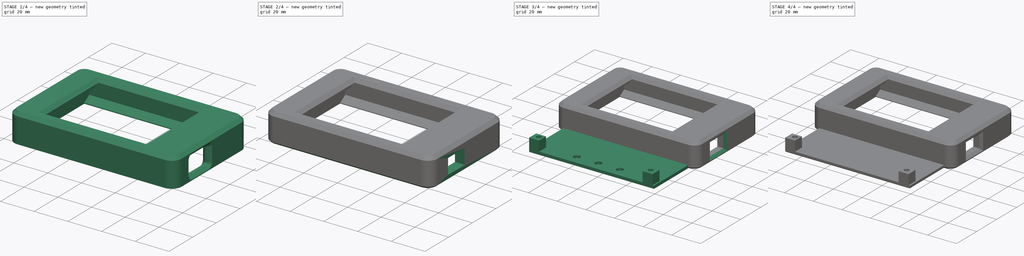
[diagram: build sequence overview — one tinted view per stage of 4, left to right]
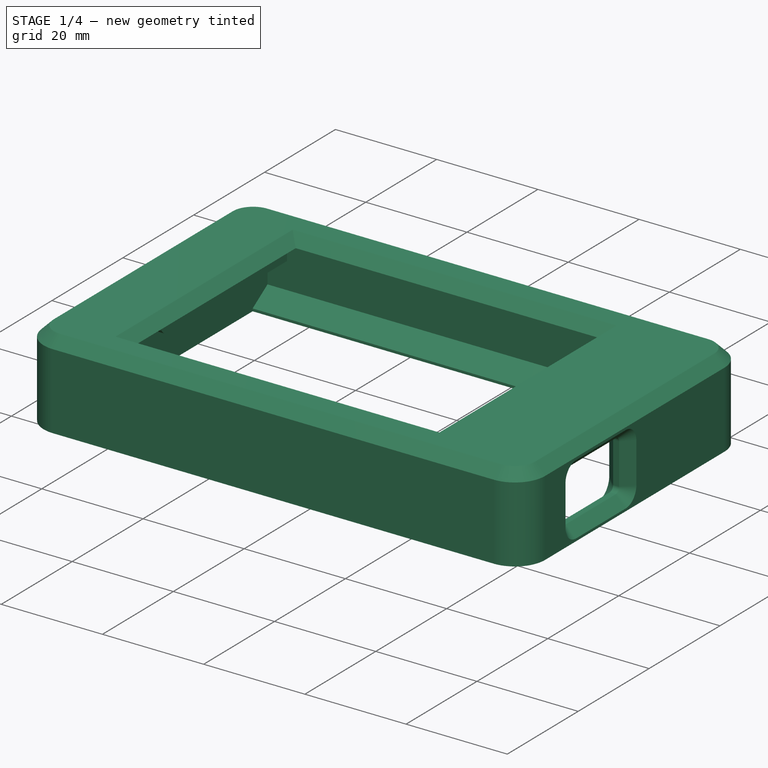
[diagram: stage 1 of 4 — iso view after this stage's code; geometry added in this stage tinted green]
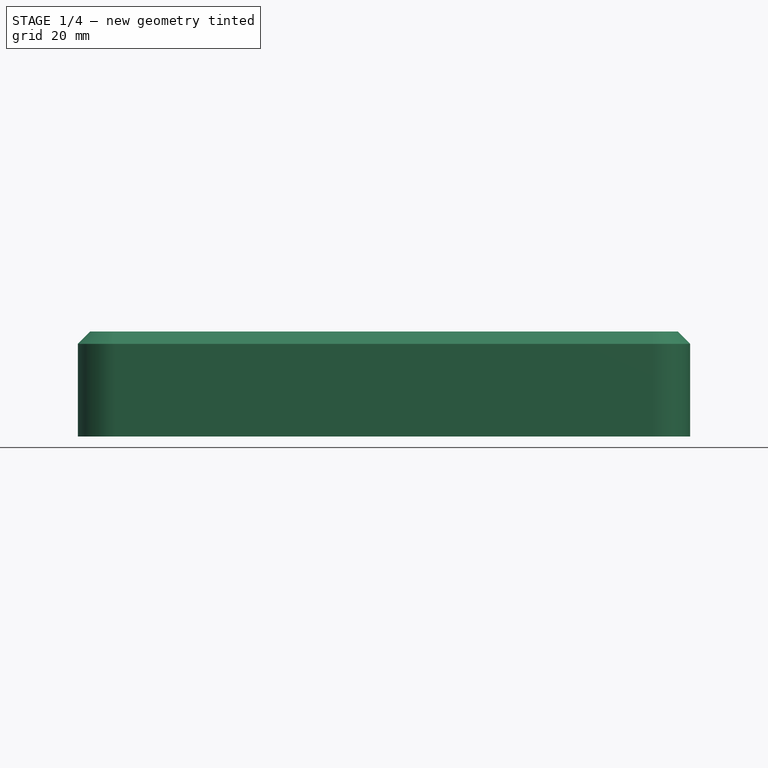
[diagram: stage 1 of 4 — front view after this stage's code; geometry added in this stage tinted green]
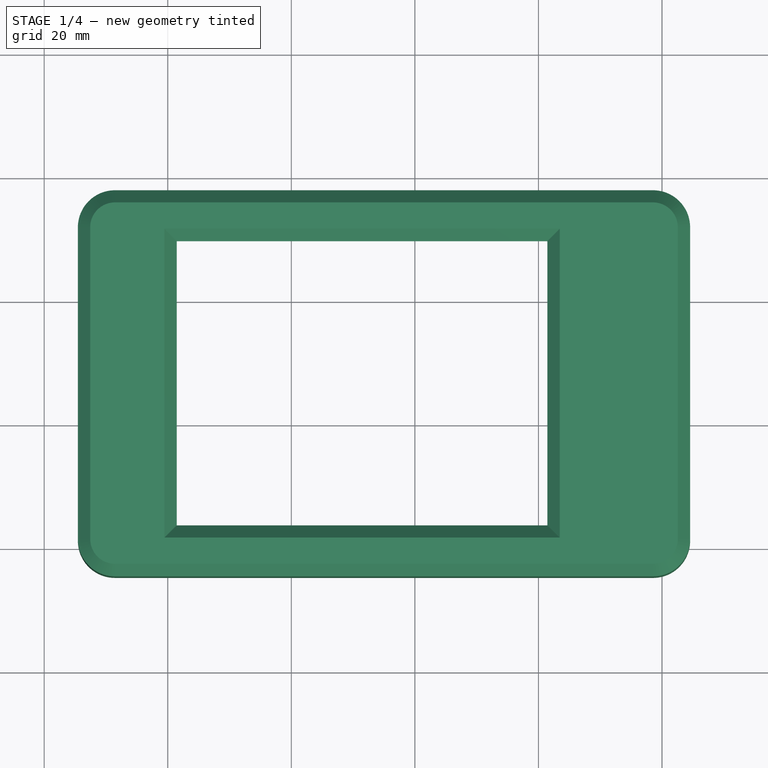
[diagram: stage 1 of 4 — top view after this stage's code; geometry added in this stage tinted green]
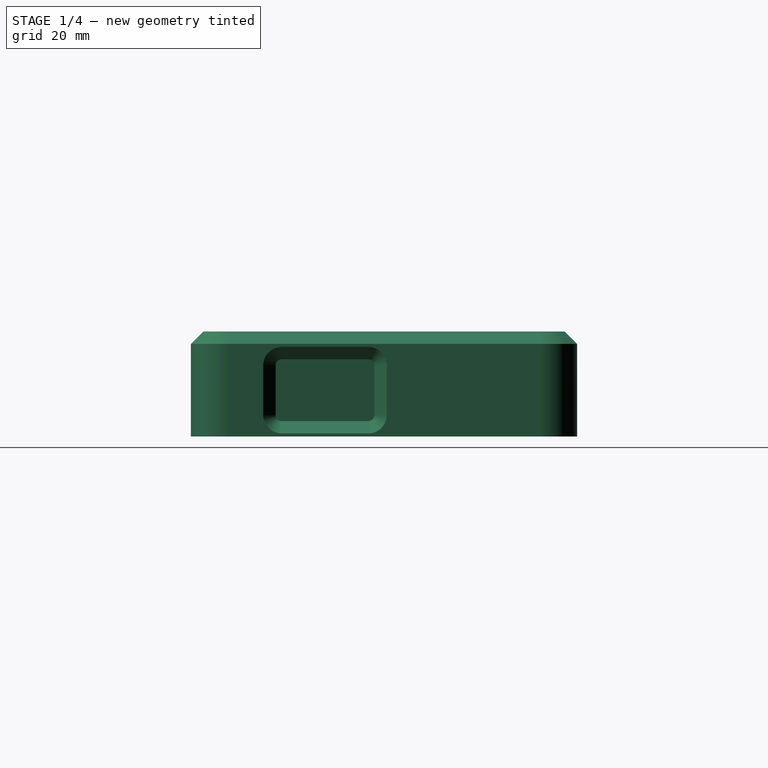
[diagram: stage 1 of 4 — right view after this stage's code; geometry added in this stage tinted green]
FCSTD DOCUMENT  (FreeCAD 0.22R37645 (Git))
Label: my generic cyd housing
License: All rights reserved
LicenseURL: http://en.wikipedia.org/wiki/All_rights_reserved
objects: PartDesign::Chamfer×5, Sketcher::SketchObject×4, PartDesign::Pad×4, Part::Feature×2, PartDesign::FeatureBase×2, PartDesign::Body×2
note: 28 computed .brp shape members not serialized (recipe doc carries the construction recipe); baked Part::Feature solids carry a one-line shape summary decoded from their .brp

FEATURE [Part::Feature] Part__Feature  label="cyd base"
  shape: bbox 87.1 x 50.5 x 9 mm, 34 faces (baked)
FEATURE [Part::Feature] Part__Feature001  label="cyd cover"
  shape: bbox 99.1 x 62.5 x 17 mm, 95 faces (baked)
FEATURE [PartDesign::FeatureBase] BaseFeature
  BaseFeature = -> Part__Feature001
  Suppressed = false
FEATURE [Sketcher::SketchObject] Sketch
  AttachmentSupport = -> [BaseFeature]
  ExternalGeometry = -> [BaseFeature]
  FullyConstrained = true
  MapMode = 5
  Placement = pos=(-3.5e-15,15.35,0) rot=(1,0,0;1.5708rad)
  Support = -> [BaseFeature]
  sketch-geometry (4):
    g0: LineSegment StartX=-36.55 StartY=24.5 StartZ=0 EndX=-36.55 EndY=11 EndZ=0
    g1: LineSegment StartX=-36.55 StartY=11 StartZ=0 EndX=-7.55 EndY=11 EndZ=0
    g2: LineSegment StartX=-7.55 StartY=11 StartZ=0 EndX=-7.55 EndY=24.5 EndZ=0
    g3: LineSegment StartX=-7.55 StartY=24.5 StartZ=0 EndX=-36.55 EndY=24.5 EndZ=0
  constraints (10):
    c: Coincident(g0,g1)
    c: Coincident(g1,g2)
    c: Coincident(g2,g3)
    c: Coincident(g3,g0)
    c: Vertical(g0)
    c: Vertical(g2)
    c: Horizontal(g1)
    c: Horizontal(g3)
    c: Coincident(g0,g-3)
    c: Coincident(g1,g-4)
FEATURE [Sketcher::SketchObject] Sketch001
  AttachmentSupport = -> [BaseFeature]
  ExternalGeometry = -> [BaseFeature]
  FullyConstrained = true
  MapMode = 5
  Placement = pos=(0,0,19.5) rot=(1,0,0;3.14159rad)
  Support = -> [BaseFeature]
  sketch-geometry (4):
    g0: LineSegment StartX=-36.55 StartY=-15.35 StartZ=0 EndX=-36.55 EndY=-21.05 EndZ=0
    g1: LineSegment StartX=-36.55 StartY=-21.05 StartZ=0 EndX=-7.55 EndY=-21.05 EndZ=0
    g2: LineSegment StartX=-7.55 StartY=-21.05 StartZ=0 EndX=-7.55 EndY=-15.35 EndZ=0
    g3: LineSegment StartX=-7.55 StartY=-15.35 StartZ=0 EndX=-36.55 EndY=-15.35 EndZ=0
  constraints (10):
    c: Coincident(g0,g1)
    c: Coincident(g1,g2)
    c: Coincident(g2,g3)
    c: Coincident(g3,g0)
    c: Vertical(g0)
    c: Vertical(g2)
    c: Horizontal(g1)
    c: Coincident(g0,g-3)
    c: PointOnObject(g-4,g1)
    c: Coincident(g-3,g2)
FEATURE [PartDesign::Pad] Pad
  BaseFeature = -> BaseFeature
  Direction = (0,0,-1)
  Length = 10
  Length2 = 10
  Profile = -> Sketch001
  ReferenceAxis = -> Sketch001 [N_Axis]
  Reversed = true
  Suppressed = false
  Type = 3
  UpToFace = -> BaseFeature [Face58]
FEATURE [PartDesign::Pad] Pad001
  BaseFeature = -> Pad
  Direction = (0,-1,2e-16)
  Length = 10
  Length2 = 10
  Profile = -> Sketch
  ReferenceAxis = -> Sketch [N_Axis]
  Refine = true
  Reversed = true
  Suppressed = false
  Type = 3
  UpToFace = -> Pad [Face65]
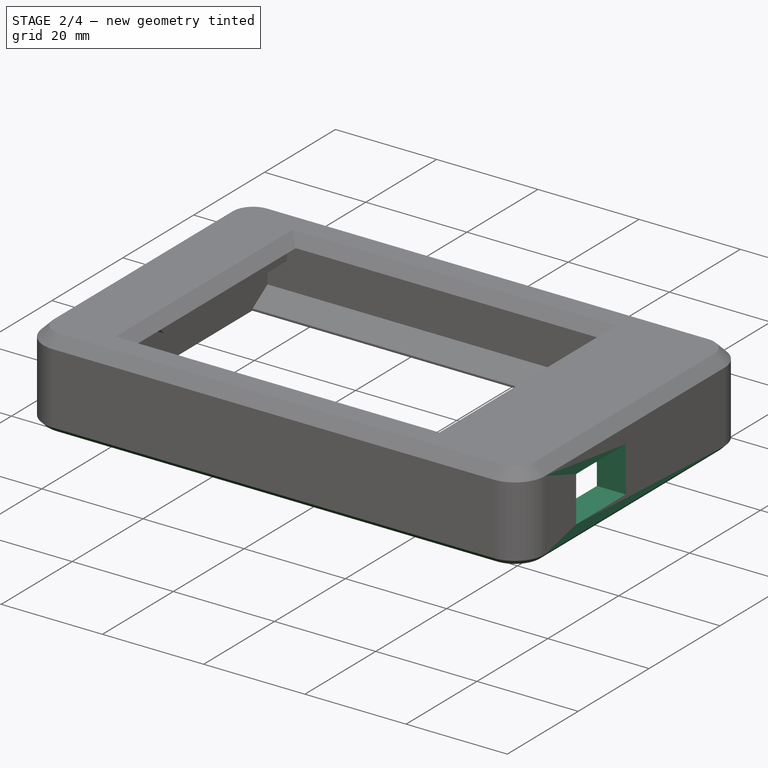
[diagram: stage 2 of 4 — iso view after this stage's code; geometry added in this stage tinted green]
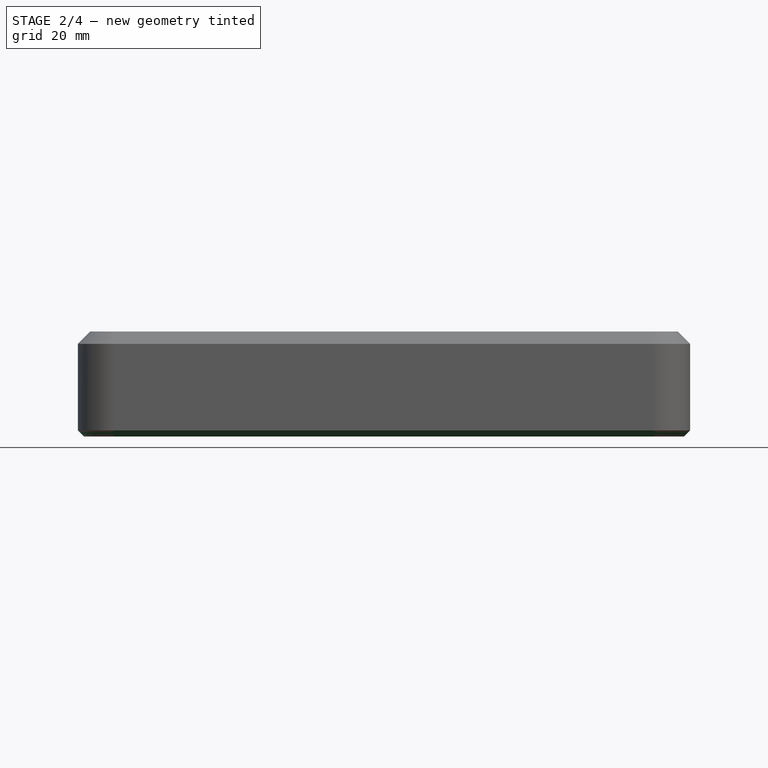
[diagram: stage 2 of 4 — front view after this stage's code; geometry added in this stage tinted green]
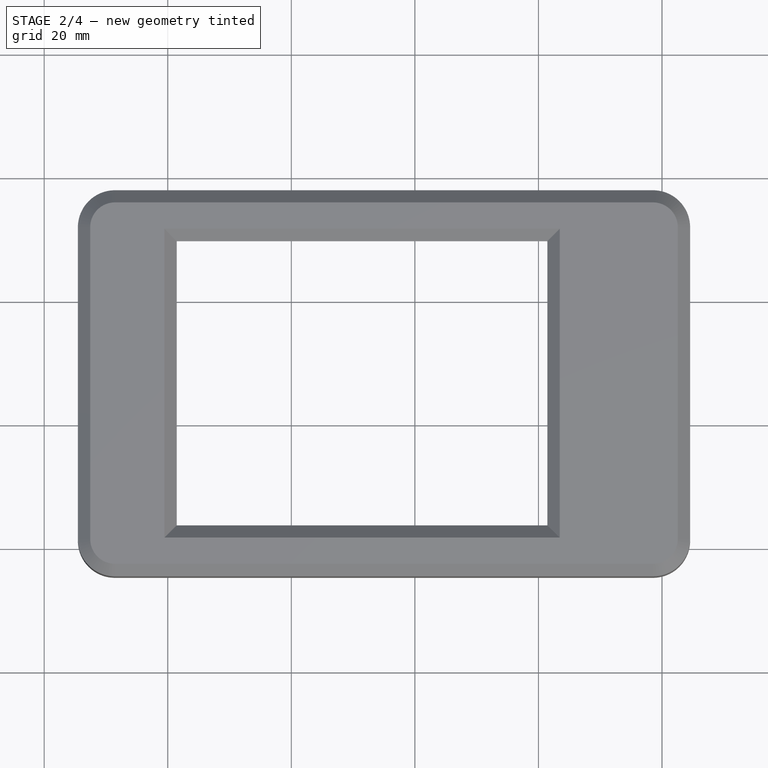
[diagram: stage 2 of 4 — top view after this stage's code; geometry added in this stage tinted green]
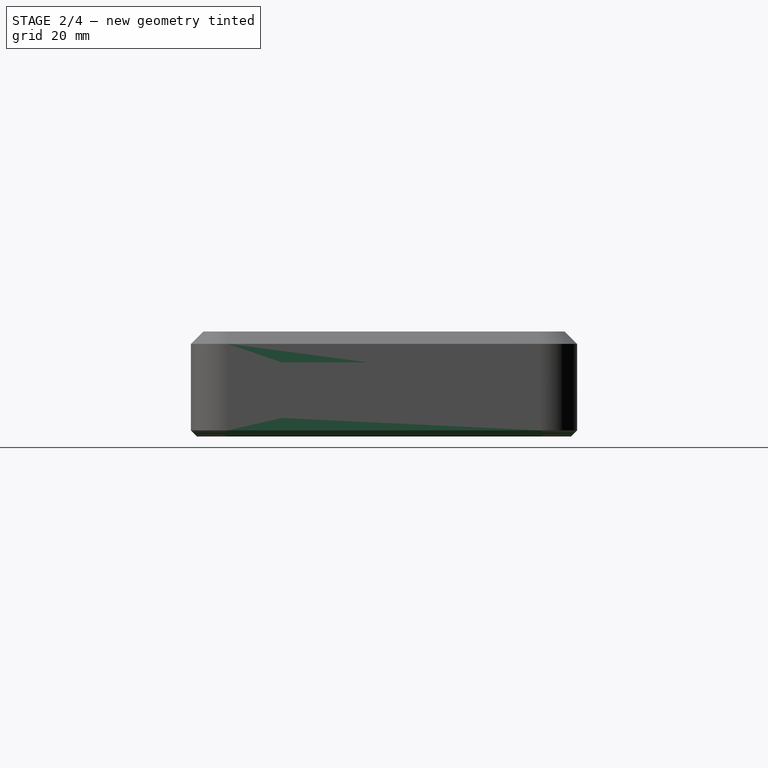
[diagram: stage 2 of 4 — right view after this stage's code; geometry added in this stage tinted green]
FEATURE [PartDesign::Body] Body001  label="bottom"
  AllowCompound = false
  BaseFeature = -> Part__Feature
  Group = -> [BaseFeature001,Sketch002,Pad002,Chamfer,Chamfer001]
  Origin = -> Origin001
  Tip = -> Chamfer001
FEATURE [Sketcher::SketchObject] Sketch003
  AttachmentSupport = -> [Pad001]
  ExternalGeometry = -> [Pad001]
  FullyConstrained = false
  MapMode = 5
  Placement = pos=(24.55,0,0) rot=(0.57735,0.57735,0.57735;2.0944rad)
  Support = -> [Pad001]
  sketch-geometry (9):
    g0: LineSegment StartX=25.0069 StartY=24.8 StartZ=0 EndX=25.0069 EndY=9.8 EndZ=0
    g1: LineSegment StartX=25.0069 StartY=9.8 StartZ=0 EndX=49.0931 EndY=9.8 EndZ=0
    g2: LineSegment StartX=49.0931 StartY=9.8 StartZ=0 EndX=49.0931 EndY=24.8 EndZ=0
    g3: LineSegment StartX=49.0931 StartY=24.8 StartZ=0 EndX=25.0069 EndY=24.8 EndZ=0
    g4: LineSegment StartX=30.05 StartY=21.8 StartZ=0 EndX=30.05 EndY=12.8 EndZ=0
    g5: LineSegment StartX=30.05 StartY=12.8 StartZ=0 EndX=44.05 EndY=12.8 EndZ=0
    g6: LineSegment StartX=44.05 StartY=12.8 StartZ=0 EndX=44.05 EndY=21.8 EndZ=0
    g7: LineSegment StartX=44.05 StartY=21.8 StartZ=0 EndX=30.05 EndY=21.8 EndZ=0
    g8: GeomPoint X=37.05 Y=17.3 Z=0
  constraints (22):
    c: Coincident(g0,g1)
    c: Coincident(g1,g2)
    c: Coincident(g2,g3)
    c: Coincident(g3,g0)
    c: Vertical(g0)
    c: Vertical(g2)
    c: Horizontal(g1)
    c: Horizontal(g3)
    c: Coincident(g4,g5)
    c: Coincident(g5,g6)
    c: Coincident(g6,g7)
    c: Coincident(g7,g4)
    c: Vertical(g4)
    c: Vertical(g6)
    c: Horizontal(g5)
    c: Horizontal(g7)
    c: DistanceX(g7,g7) = 14
    c: DistanceY(g6,g6) = 9
    c: Symmetric(g4,g6,g8)
    c: Symmetric(g0,g2,g8)
    c: Symmetric(g-6,g-5,g8)
    c: PointOnObject(g1,g-7)
FEATURE [PartDesign::Pad] Pad003
  BaseFeature = -> Pad001
  Direction = (1,0,0)
  Length = 10
  Length2 = 10
  Profile = -> Sketch003
  ReferenceAxis = -> Sketch003 [N_Axis]
  Refine = true
  Reversed = true
  Suppressed = false
  Type = 3
  UpToFace = -> Pad001 [Face1]
FEATURE [PartDesign::Chamfer] Chamfer002
  Angle = 45
  Base = -> Pad003 [Edge93,Edge81,Edge4,Edge172]
  BaseFeature = -> Pad003
  ChamferType = 0
  FlipDirection = false
  Size = 0.2
  Size2 = 1
  SupportTransform = false
  Suppressed = false
  UseAllEdges = false
FEATURE [PartDesign::Chamfer] Chamfer003
  Angle = 45
  Base = -> Chamfer002 [Edge110]
  BaseFeature = -> Chamfer002
  ChamferType = 0
  FlipDirection = false
  Size = 1
  Size2 = 1
  SupportTransform = false
  Suppressed = false
  UseAllEdges = false
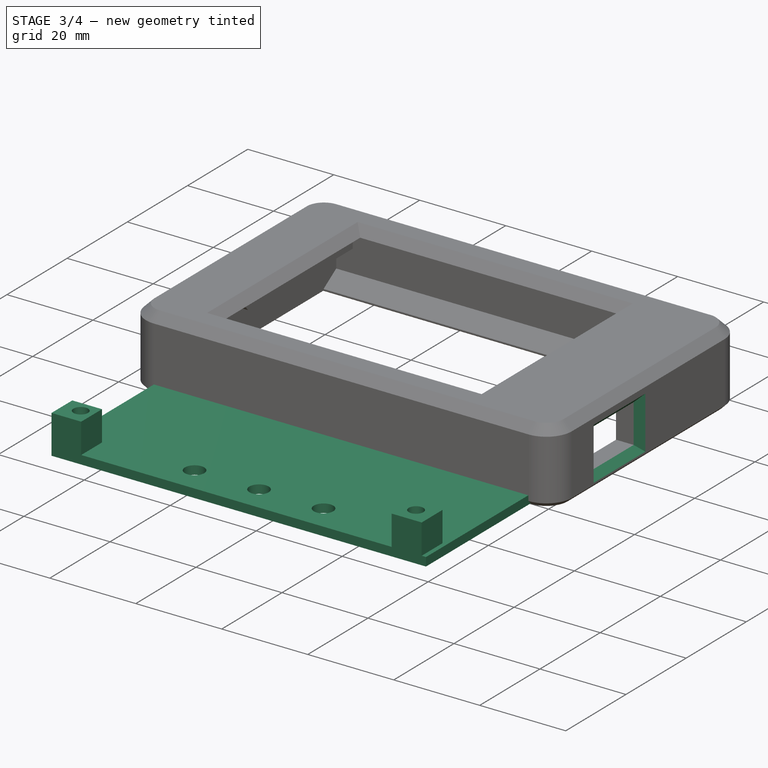
[diagram: stage 3 of 4 — iso view after this stage's code; geometry added in this stage tinted green]
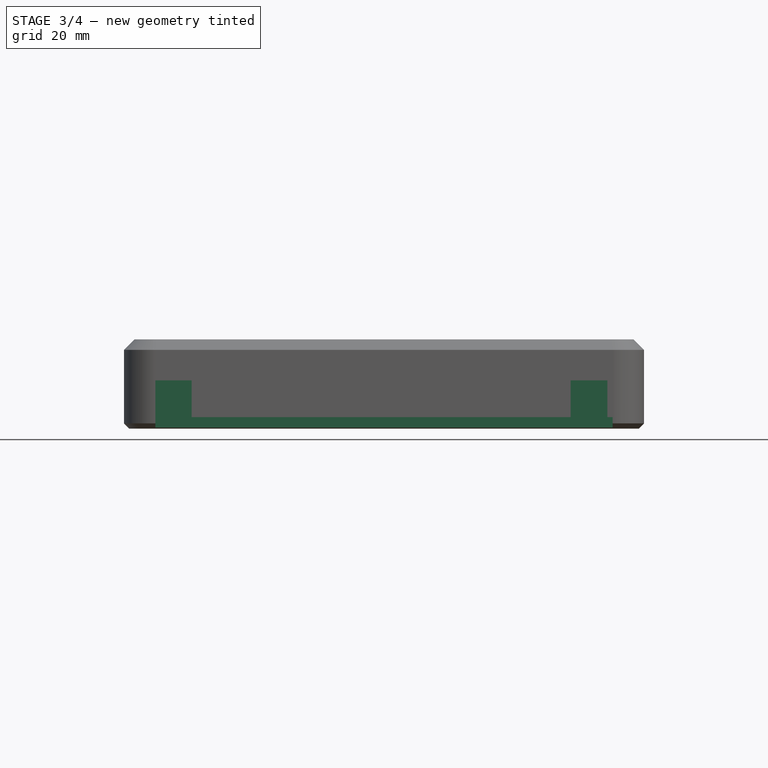
[diagram: stage 3 of 4 — front view after this stage's code; geometry added in this stage tinted green]
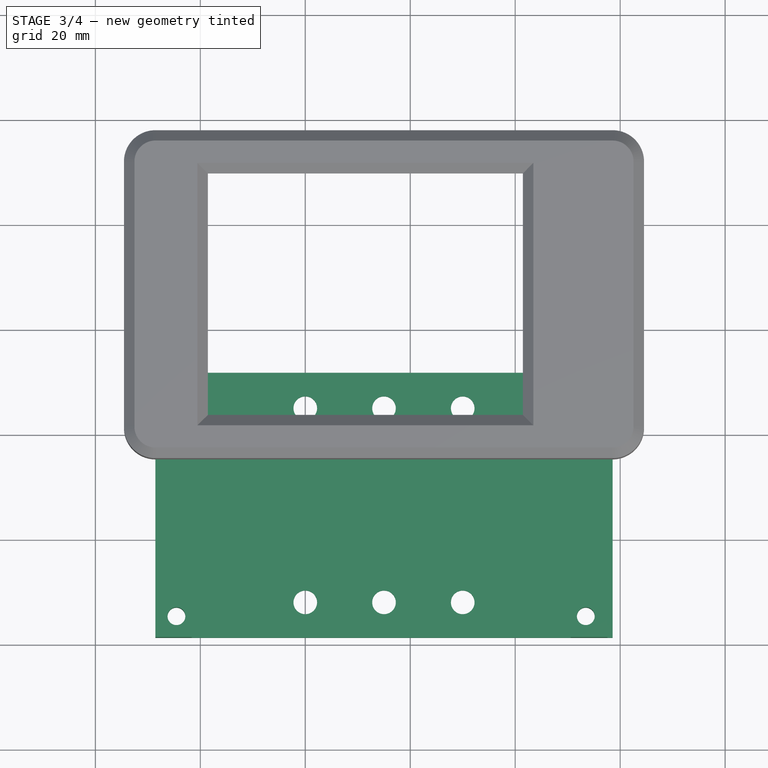
[diagram: stage 3 of 4 — top view after this stage's code; geometry added in this stage tinted green]
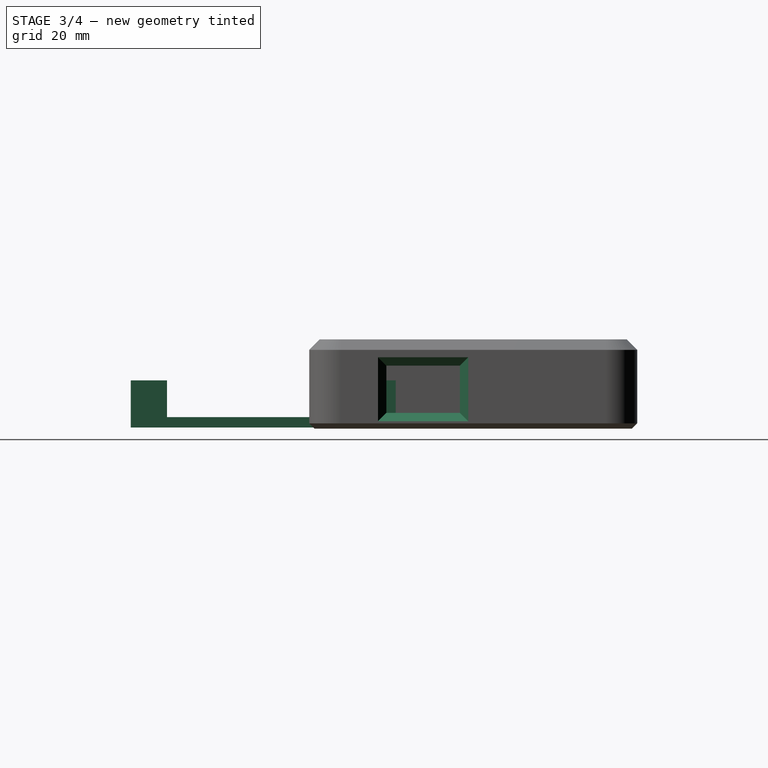
[diagram: stage 3 of 4 — right view after this stage's code; geometry added in this stage tinted green]
FEATURE [PartDesign::FeatureBase] BaseFeature001
  BaseFeature = -> Part__Feature
  Suppressed = false
FEATURE [PartDesign::Chamfer] Chamfer004
  Angle = 45
  Base = -> Chamfer003 [Edge48,Edge46,Edge49,Edge47]
  BaseFeature = -> Chamfer003
  ChamferType = 0
  FlipDirection = false
  Size = 1.6
  Size2 = 1
  SupportTransform = false
  Suppressed = false
  UseAllEdges = false
FEATURE [PartDesign::Body] Body  label="top"
  AllowCompound = false
  BaseFeature = -> Part__Feature001
  Group = -> [BaseFeature,Sketch,Sketch001,Pad,Pad001,Sketch003,Pad003,Chamfer002,Chamfer003,Chamfer004]
  Origin = -> Origin
  Tip = -> Chamfer004
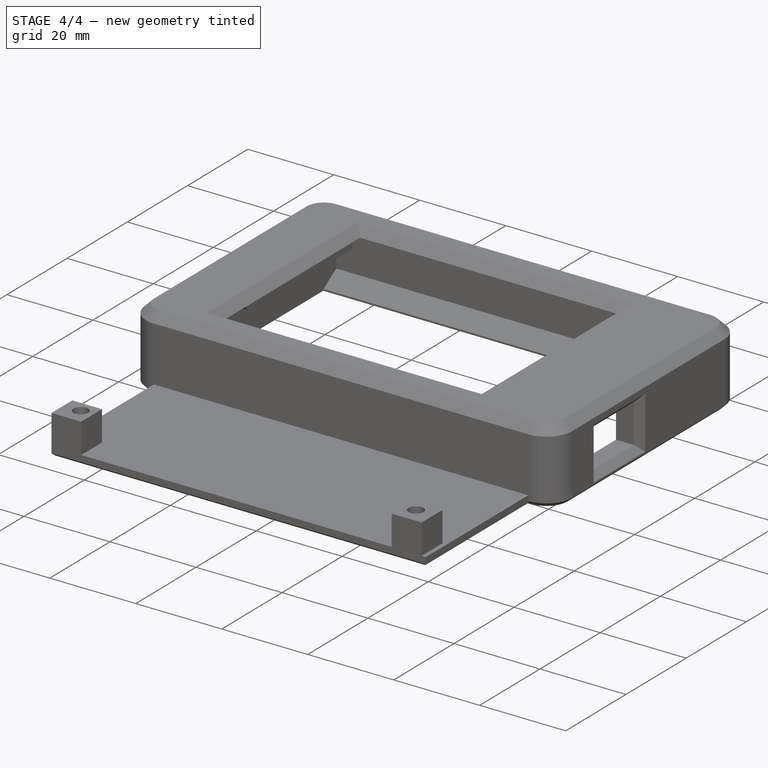
[diagram: stage 4 of 4 — iso view after this stage's code; geometry added in this stage tinted green]
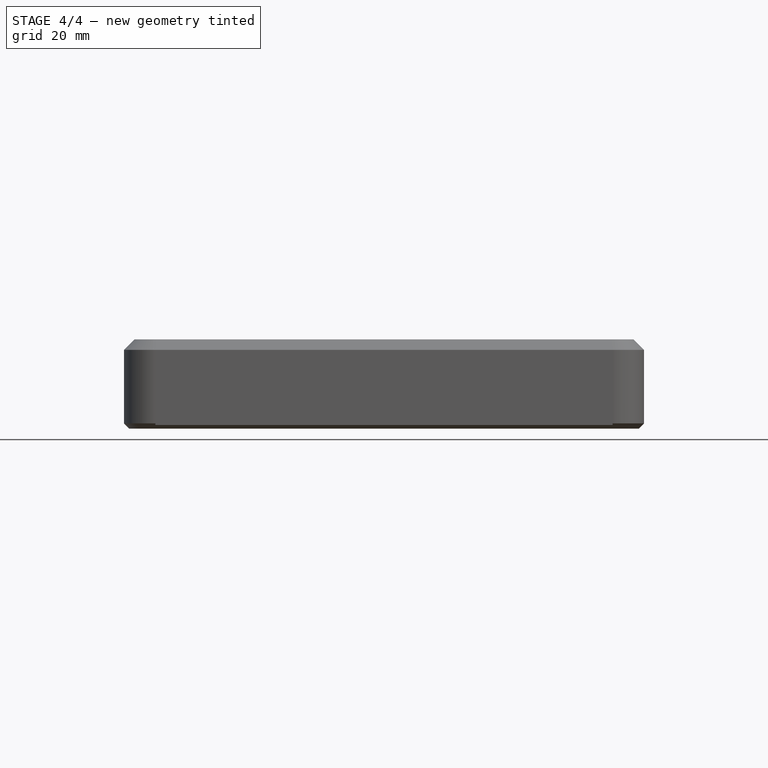
[diagram: stage 4 of 4 — front view after this stage's code; geometry added in this stage tinted green]
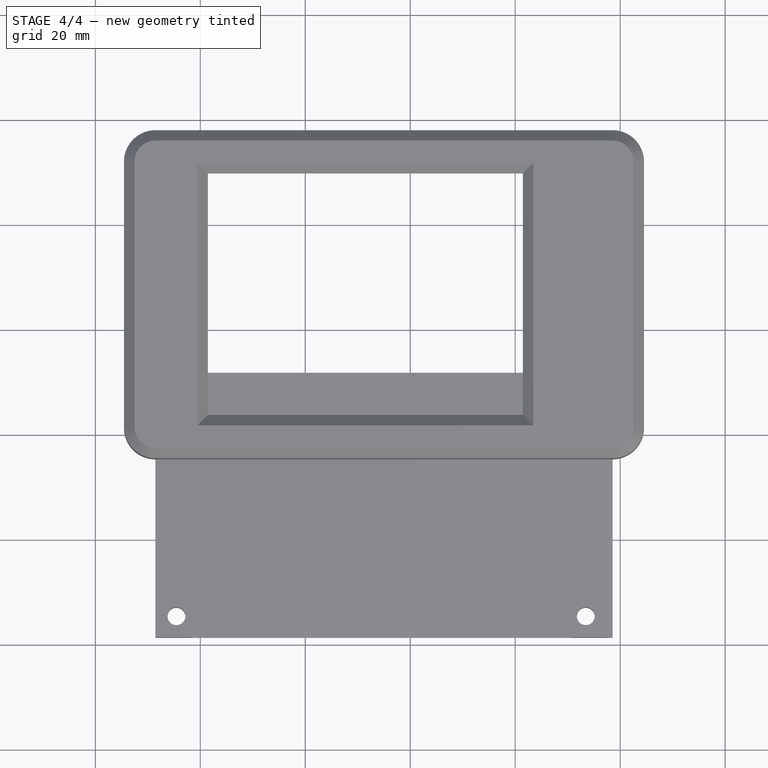
[diagram: stage 4 of 4 — top view after this stage's code; geometry added in this stage tinted green]
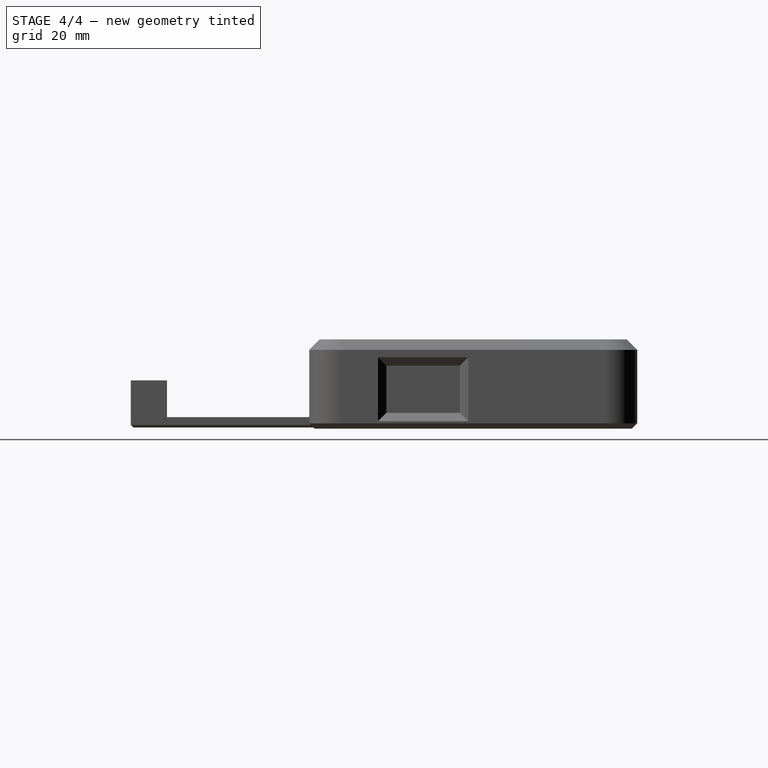
[diagram: stage 4 of 4 — right view after this stage's code; geometry added in this stage tinted green]
FEATURE [Sketcher::SketchObject] Sketch002
  AttachmentSupport = -> [BaseFeature001]
  ExternalGeometry = -> [BaseFeature001]
  FullyConstrained = true
  MapMode = 5
  Placement = pos=(0,0,10) rot=(1,0,0;3.14159rad)
  Support = -> [BaseFeature001]
  sketch-geometry (8):
    g0: LineSegment StartX=-68.55 StartY=18.65 StartZ=0 EndX=-68.55 EndY=-31.85 EndZ=0
    g1: LineSegment StartX=-68.55 StartY=-31.85 StartZ=0 EndX=18.55 EndY=-31.85 EndZ=0
    g2: LineSegment StartX=18.55 StartY=-31.85 StartZ=0 EndX=18.55 EndY=18.65 EndZ=0
    g3: LineSegment StartX=18.55 StartY=18.65 StartZ=0 EndX=-68.55 EndY=18.65 EndZ=0
    g4: Circle CenterX=-64.55 CenterY=-27.85 CenterZ=0 NormalX=0 NormalY=0 NormalZ=1 AngleXU=0 Radius=1.7
    g5: Circle CenterX=13.45 CenterY=-27.85 CenterZ=0 NormalX=0 NormalY=0 NormalZ=1 AngleXU=0 Radius=1.7
    g6: Circle CenterX=13.45 CenterY=14.65 CenterZ=0 NormalX=0 NormalY=0 NormalZ=1 AngleXU=0 Radius=1.7
    g7: Circle CenterX=-64.55 CenterY=14.65 CenterZ=0 NormalX=0 NormalY=0 NormalZ=1 AngleXU=0 Radius=1.7
  constraints (18):
    c: Coincident(g0,g1)
    c: Coincident(g1,g2)
    c: Coincident(g2,g3)
    c: Coincident(g3,g0)
    c: Vertical(g0)
    c: Vertical(g2)
    c: Horizontal(g1)
    c: Horizontal(g3)
    c: Coincident(g0,g-3)
    c: Coincident(g1,g-4)
    c: Coincident(g7,g-6)
    c: Coincident(g4,g-5)
    c: Coincident(g5,g-8)
    c: Coincident(g6,g-7)
    c: Equal(g6,g-7)
    c: Equal(g-8,g5)
    c: Equal(g4,g-5)
    c: Equal(g7,g-6)
FEATURE [PartDesign::Pad] Pad002
  BaseFeature = -> BaseFeature001
  Direction = (0,0,-1)
  Length = 10
  Length2 = 10
  Profile = -> Sketch002
  ReferenceAxis = -> Sketch002 [N_Axis]
  Refine = true
  Reversed = true
  Suppressed = false
  Type = 3
  UpToFace = -> BaseFeature001 [Face3]
FEATURE [PartDesign::Chamfer] Chamfer
  Angle = 45
  Base = -> Pad002 [Edge47,Edge20,Edge22,Edge14]
  BaseFeature = -> Pad002
  ChamferType = 0
  FlipDirection = false
  Size = 0.5
  Size2 = 1
  SupportTransform = false
  Suppressed = false
  UseAllEdges = false
FEATURE [PartDesign::Chamfer] Chamfer001
  Angle = 45
  Base = -> Chamfer [Edge67,Edge66,Edge64,Edge65]
  BaseFeature = -> Chamfer
  ChamferType = 0
  FlipDirection = false
  Size = 1.5
  Size2 = 1
  SupportTransform = false
  Suppressed = false
  UseAllEdges = false
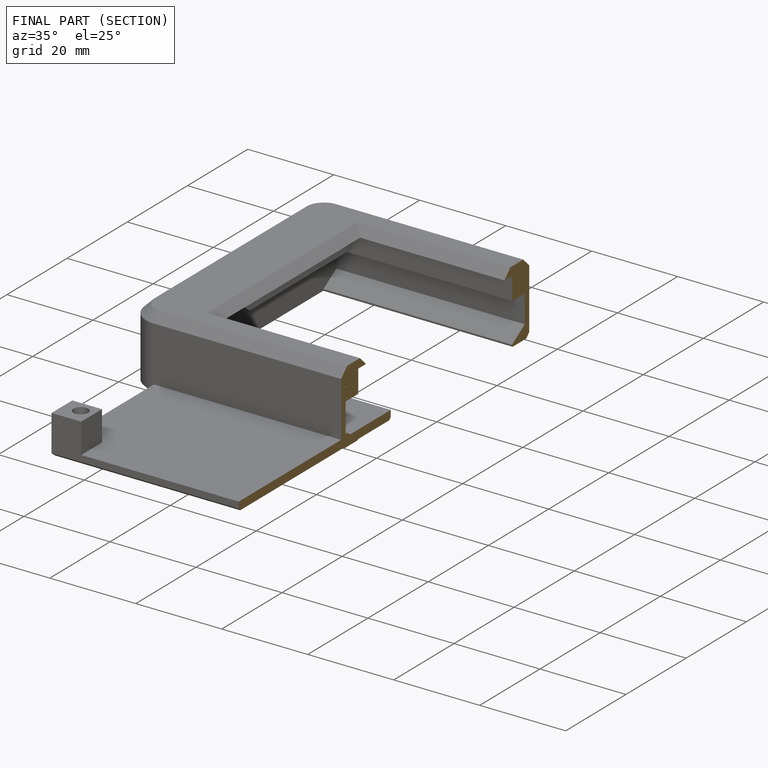
[diagram: finished part — half-section view (interior)]
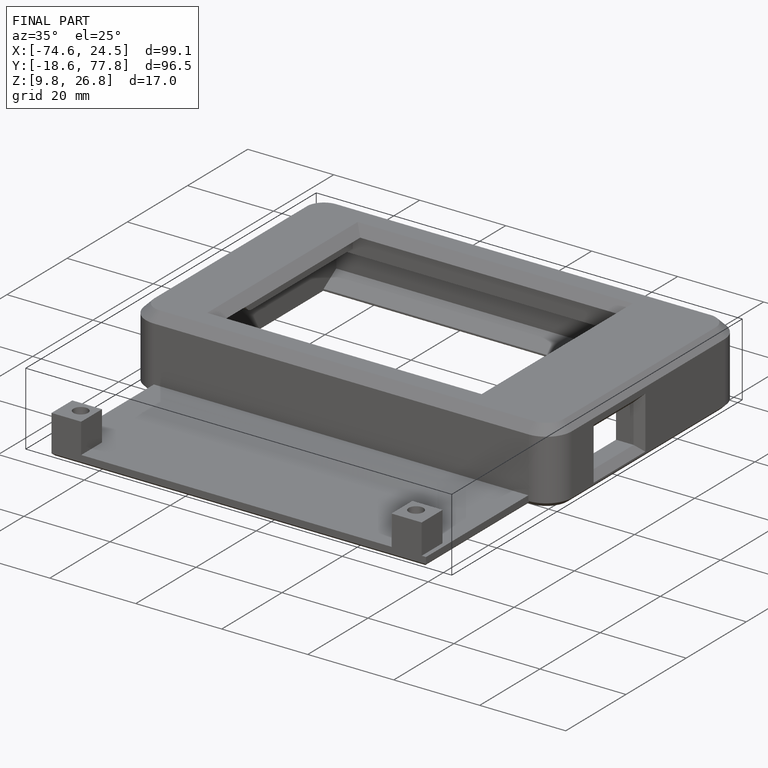
[diagram: finished part — iso view with bounding-box wireframe]
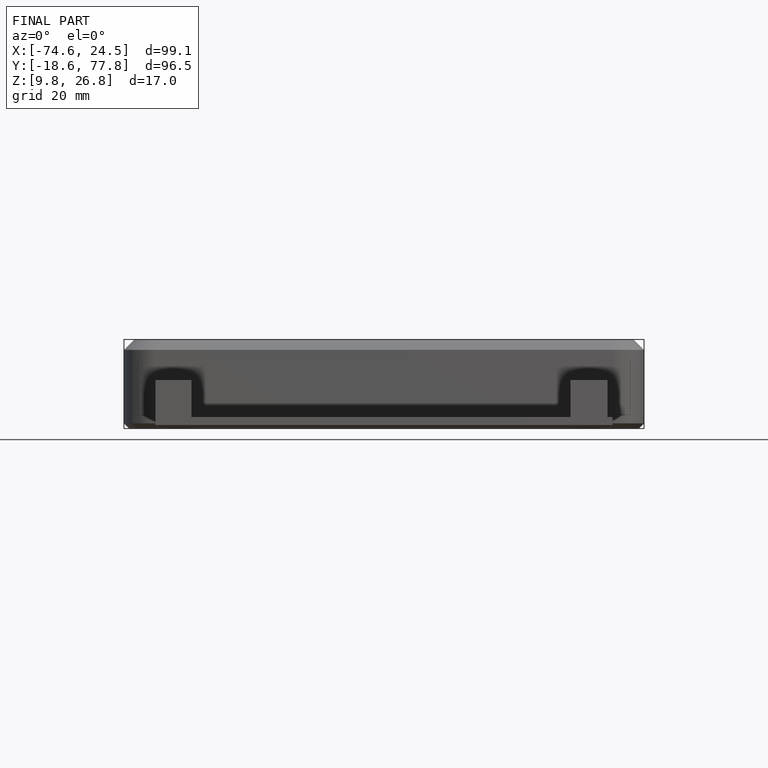
[diagram: finished part — front view with bounding-box wireframe]
